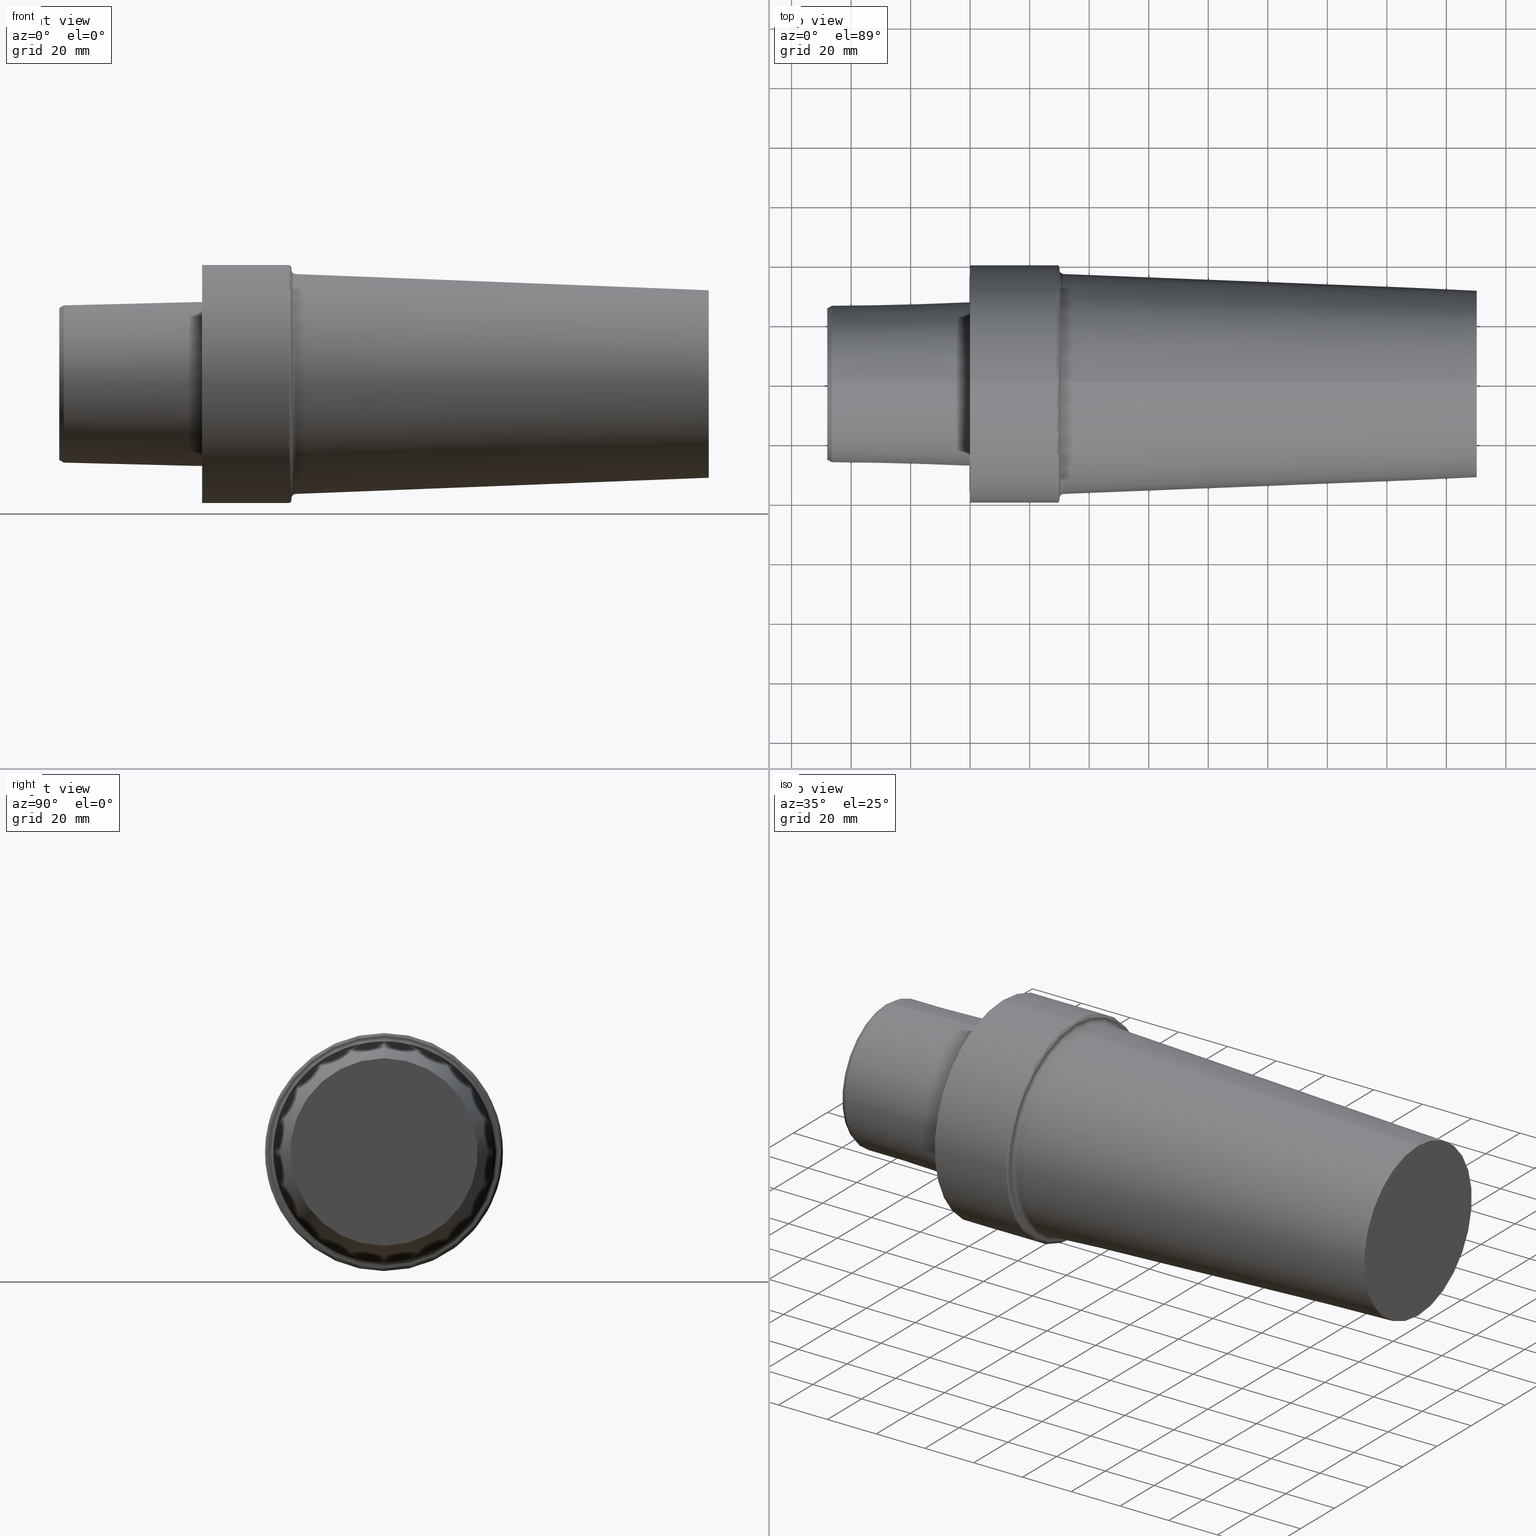
[diagram: canonical four-view strip — front | top / right | iso, engineering-drawing reading convention]
A machine part, canonical four-view strip (front | top / right | iso — engineering-drawing reading convention). The complete STEP part file that produces these views, byte-faithful:
ISO-10303-21;
HEADER;
FILE_DESCRIPTION (( 'STEP AP203' ),
    '1' );
FILE_NAME ('C8-F63-170.stp',
    '2022-03-11T15:36:35',
    ( '' ),
    ( '' ),
    'SwSTEP 2.0',
    'SolidWorks 2021',
    '' );
FILE_SCHEMA (( 'CONFIG_CONTROL_DESIGN' ));
ENDSEC;

DATA;
#1 = ORIENTED_EDGE ( 'NONE', *, *, #265, .T. ) ;
#2 = AXIS2_PLACEMENT_3D ( 'NONE', #484, #34, #441 ) ;
#3 = DIRECTION ( 'NONE',  ( -1.000000000000000000, 0.000000000000000000, 0.000000000000000000 ) ) ;
#4 =( GEOMETRIC_REPRESENTATION_CONTEXT ( 3 ) GLOBAL_UNCERTAINTY_ASSIGNED_CONTEXT ( ( #163 ) ) GLOBAL_UNIT_ASSIGNED_CONTEXT ( ( #38, #197, #276 ) ) REPRESENTATION_CONTEXT ( 'NONE', 'WORKASPACE' ) );
#5 = ORIENTED_EDGE ( 'NONE', *, *, #538, .T. ) ;
#6 = SECURITY_CLASSIFICATION_LEVEL ( 'unclassified' ) ;
#7 = CARTESIAN_POINT ( 'NONE',  ( -47.99999995507708661, 0.000000000000000000, 0.000000000000000000 ) ) ;
#8 = ORIENTED_EDGE ( 'NONE', *, *, #111, .F. ) ;
#9 = ADVANCED_FACE ( 'NONE', ( #29 ), #125, .T. ) ;
#10 = PLANE ( 'NONE',  #364 ) ;
#11 = ORIENTED_EDGE ( 'NONE', *, *, #91, .T. ) ;
#12 = VECTOR ( 'NONE', #133, 1000.000000000000114 ) ;
#13 = FACE_OUTER_BOUND ( 'NONE', #455, .T. ) ;
#14 = ORIENTED_EDGE ( 'NONE', *, *, #150, .T. ) ;
#15 = PRODUCT_RELATED_PRODUCT_CATEGORY ( 'detail', '', ( #285 ) ) ;
#16 = ORIENTED_EDGE ( 'NONE', *, *, #129, .T. ) ;
#17 = EDGE_CURVE ( 'NONE', #124, #22, #287, .T. ) ;
#18 = DIRECTION ( 'NONE',  ( 0.000000000000000000, 1.000000000000000000, 1.224646799147355919E-16 ) ) ;
#19 = ORIENTED_EDGE ( 'NONE', *, *, #457, .T. ) ;
#20 = DIRECTION ( 'NONE',  ( 0.000000000000000000, 0.000000000000000000, 1.000000000000000000 ) ) ;
#21 = AXIS2_PLACEMENT_3D ( 'NONE', #404, #400, #37 ) ;
#22 = VERTEX_POINT ( 'NONE', #74 ) ;
#23 = ORGANIZATION ( 'UNSPECIFIED', 'UNSPECIFIED', '' ) ;
#24 = DIRECTION ( 'NONE',  ( 0.000000000000000000, 0.000000000000000000, 1.000000000000000000 ) ) ;
#25 = ORIENTED_EDGE ( 'NONE', *, *, #223, .F. ) ;
#26 = DIRECTION ( 'NONE',  ( -1.000000000000000000, 0.000000000000000000, 0.000000000000000000 ) ) ;
#27 = ADVANCED_FACE ( 'NONE', ( #363 ), #182, .F. ) ;
#28 = ORIENTED_EDGE ( 'NONE', *, *, #150, .F. ) ;
#29 = FACE_OUTER_BOUND ( 'NONE', #523, .T. ) ;
#30 = CC_DESIGN_PERSON_AND_ORGANIZATION_ASSIGNMENT ( #39, #165, ( #510 ) ) ;
#31 = AXIS2_PLACEMENT_3D ( 'NONE', #527, #532, #149 ) ;
#32 = AXIS2_PLACEMENT_3D ( 'NONE', #411, #454, #499 ) ;
#33 = DIRECTION ( 'NONE',  ( -1.000000000000000000, 0.000000000000000000, 0.000000000000000000 ) ) ;
#34 = DIRECTION ( 'NONE',  ( -1.000000000000000000, 0.000000000000000000, 0.000000000000000000 ) ) ;
#35 = EDGE_CURVE ( 'NONE', #178, #500, #387, .T. ) ;
#36 = CARTESIAN_POINT ( 'NONE',  ( -46.49999994987858543, 0.000000000000000000, -26.41260027772084129 ) ) ;
#37 = DIRECTION ( 'NONE',  ( 0.000000000000000000, 1.000000000000000000, 0.000000000000000000 ) ) ;
#38 =( LENGTH_UNIT ( ) NAMED_UNIT ( * ) SI_UNIT ( .MILLI., .METRE. ) );
#39 = PERSON_AND_ORGANIZATION ( #451, #23 ) ;
#40 = EDGE_CURVE ( 'NONE', #45, #353, #402, .T. ) ;
#41 = LINE ( 'NONE', #327, #321 ) ;
#42 = CARTESIAN_POINT ( 'NONE',  ( 28.99999997311141797, 0.000000000000000000, 0.000000000000000000 ) ) ;
#43 = ORIENTED_EDGE ( 'NONE', *, *, #122, .F. ) ;
#44 = PLANE ( 'NONE',  #253 ) ;
#45 = VERTEX_POINT ( 'NONE', #490 ) ;
#46 = AXIS2_PLACEMENT_3D ( 'NONE', #494, #452, #172 ) ;
#47 = SHAPE_DEFINITION_REPRESENTATION ( #79, #262 ) ;
#48 = DIRECTION ( 'NONE',  ( 0.000000000000000000, 0.000000000000000000, 1.000000000000000000 ) ) ;
#49 = ORIENTED_EDGE ( 'NONE', *, *, #190, .T. ) ;
#50 = APPROVAL ( #151, 'UNSPECIFIED' ) ;
#51 = DIRECTION ( 'NONE',  ( 0.000000000000000000, 0.000000000000000000, 1.000000000000000000 ) ) ;
#52 = ORIENTED_EDGE ( 'NONE', *, *, #369, .F. ) ;
#53 = CARTESIAN_POINT ( 'NONE',  ( 170.1999504090875917, 3.857637413950260996E-15, -31.49999997253168615 ) ) ;
#54 = AXIS2_PLACEMENT_3D ( 'NONE', #366, #408, #161 ) ;
#55 = AXIS2_PLACEMENT_3D ( 'NONE', #388, #470, #95 ) ;
#56 = MANIFOLD_SOLID_BREP ( 'Scale1', #97 ) ;
#57 = CARTESIAN_POINT ( 'NONE',  ( 29.99999997209141611, 38.44230921545053548, 0.000000000000000000 ) ) ;
#58 = ADVANCED_FACE ( 'NONE', ( #444, #152 ), #529, .F. ) ;
#59 = ORIENTED_EDGE ( 'NONE', *, *, #122, .T. ) ;
#60 = CIRCLE ( 'NONE', #519, 27.52650806658465399 ) ;
#61 = DIRECTION ( 'NONE',  ( -1.000000000000000000, 0.000000000000000000, 0.000000000000000000 ) ) ;
#62 = ORIENTED_EDGE ( 'NONE', *, *, #111, .T. ) ;
#63 = CC_DESIGN_DATE_AND_TIME_ASSIGNMENT ( #460, #534, ( #377 ) ) ;
#64 = CARTESIAN_POINT ( 'NONE',  ( 31.49999997056141510, 0.000000000000000000, 38.44230921983423599 ) ) ;
#65 = ORIENTED_EDGE ( 'NONE', *, *, #384, .F. ) ;
#66 = DIRECTION ( 'NONE',  ( 1.000000000000000000, 0.000000000000000000, 0.000000000000000000 ) ) ;
#67 = AXIS2_PLACEMENT_3D ( 'NONE', #255, #381, #212 ) ;
#68 = ORIENTED_EDGE ( 'NONE', *, *, #274, .F. ) ;
#69 = AXIS2_PLACEMENT_3D ( 'NONE', #279, #485, #154 ) ;
#70 = EDGE_CURVE ( 'NONE', #306, #258, #385, .T. ) ;
#71 = DIRECTION ( 'NONE',  ( 0.000000000000000000, 0.000000000000000000, 1.000000000000000000 ) ) ;
#72 = CARTESIAN_POINT ( 'NONE',  ( 2.691416640612785863E-09, 4.897668707065322260E-15, -39.99249996386929951 ) ) ;
#73 = COORDINATED_UNIVERSAL_TIME_OFFSET ( 6, 0, .BEHIND. ) ;
#74 = CARTESIAN_POINT ( 'NONE',  ( -47.99999995507708661, 0.000000000000000000, -25.54657487093501445 ) ) ;
#75 = ADVANCED_FACE ( 'NONE', ( #155 ), #488, .T. ) ;
#76 = VECTOR ( 'NONE', #82, 1000.000000000000114 ) ;
#77 = VECTOR ( 'NONE', #302, 1000.000000000000114 ) ;
#78 = APPROVAL_PERSON_ORGANIZATION ( #251, #443, #160 ) ;
#79 = PRODUCT_DEFINITION_SHAPE ( 'NONE', 'NONE',  #143 ) ;
#80 = FACE_OUTER_BOUND ( 'NONE', #205, .T. ) ;
#81 = EDGE_LOOP ( 'NONE', ( #468, #225 ) ) ;
#82 = DIRECTION ( 'NONE',  ( 0.9996876883616916398, 0.000000000000000000, -0.02499051296106793996 ) ) ;
#83 = DIRECTION ( 'NONE',  ( 0.000000000000000000, 0.000000000000000000, 1.000000000000000000 ) ) ;
#84 = AXIS2_PLACEMENT_3D ( 'NONE', #283, #242, #236 ) ;
#85 = DIRECTION ( 'NONE',  ( 0.000000000000000000, 0.000000000000000000, -1.000000000000000000 ) ) ;
#86 = CARTESIAN_POINT ( 'NONE',  ( -46.49999994987858543, 0.000000000000000000, 0.000000000000000000 ) ) ;
#87 = ORIENTED_EDGE ( 'NONE', *, *, #162, .T. ) ;
#88 = PERSON_AND_ORGANIZATION ( #451, #23 ) ;
#89 = DIRECTION ( 'NONE',  ( 1.000000000000000000, 0.000000000000000000, 0.000000000000000000 ) ) ;
#90 = ORIENTED_EDGE ( 'NONE', *, *, #342, .T. ) ;
#91 = EDGE_CURVE ( 'NONE', #178, #177, #496, .T. ) ;
#92 = APPLICATION_CONTEXT ( 'configuration controlled 3d designs of mechanical parts and assemblies' ) ;
#93 = LOCAL_TIME ( 9, 36, 35.00000000000000000, #417 ) ;
#94 = ORIENTED_EDGE ( 'NONE', *, *, #162, .F. ) ;
#95 = DIRECTION ( 'NONE',  ( 0.000000000000000000, 0.000000000000000000, -1.000000000000000000 ) ) ;
#96 = VERTEX_POINT ( 'NONE', #284 ) ;
#97 = CLOSED_SHELL ( 'NONE', ( #256, #299, #530, #75, #58, #169, #240, #352, #27, #281, #314, #9, #206, #401, #491, #358, #469, #476 ) ) ;
#98 = VECTOR ( 'NONE', #257, 1000.000000000000000 ) ;
#99 = DIRECTION ( 'NONE',  ( -0.9992314028999961240, 0.000000000000000000, 0.03919953390673725641 ) ) ;
#100 = EDGE_LOOP ( 'NONE', ( #503, #371 ) ) ;
#101 = DIRECTION ( 'NONE',  ( 0.000000000000000000, 0.000000000000000000, 1.000000000000000000 ) ) ;
#102 = ORIENTED_EDGE ( 'NONE', *, *, #325, .F. ) ;
#103 = DIRECTION ( 'NONE',  ( 0.000000000000000000, 0.000000000000000000, -1.000000000000000000 ) ) ;
#104 = ORIENTED_EDGE ( 'NONE', *, *, #450, .T. ) ;
#105 = DIRECTION ( 'NONE',  ( 0.000000000000000000, 0.000000000000000000, 1.000000000000000000 ) ) ;
#106 = AXIS2_PLACEMENT_3D ( 'NONE', #328, #335, #83 ) ;
#107 = VERTEX_POINT ( 'NONE', #110 ) ;
#108 = CC_DESIGN_APPROVAL ( #443, ( #510 ) ) ;
#109 = DIRECTION ( 'NONE',  ( -1.000000000000000000, 0.000000000000000000, 0.000000000000000000 ) ) ;
#110 = CARTESIAN_POINT ( 'NONE',  ( 31.44120067062139512, 0.000000000000000000, 36.94346211697936155 ) ) ;
#111 = EDGE_CURVE ( 'NONE', #512, #45, #201, .T. ) ;
#112 = CARTESIAN_POINT ( 'NONE',  ( 29.99999997209141611, 0.000000000000000000, 38.99249996488934045 ) ) ;
#113 = CARTESIAN_POINT ( 'NONE',  ( 170.1999504090875917, 4.190953338524140822E-15, -31.49999997253168615 ) ) ;
#114 = DIRECTION ( 'NONE',  ( -1.000000000000000000, 0.000000000000000000, 0.000000000000000000 ) ) ;
#115 = CARTESIAN_POINT ( 'NONE',  ( -1.940694415329066391, 0.000000000000000000, 0.000000000000000000 ) ) ;
#116 = CIRCLE ( 'NONE', #373, 26.41260027772084129 ) ;
#117 = CONICAL_SURFACE ( 'NONE', #32, 31.49999997253168615, 0.03920957987802033140 ) ;
#118 = PERSON_AND_ORGANIZATION ( #451, #23 ) ;
#119 = DIRECTION ( 'NONE',  ( 0.000000000000000000, 0.000000000000000000, 1.000000000000000000 ) ) ;
#120 = DATE_AND_TIME ( #501, #301 ) ;
#121 = DIRECTION ( 'NONE',  ( 0.000000000000000000, 0.000000000000000000, 1.000000000000000000 ) ) ;
#122 = EDGE_CURVE ( 'NONE', #353, #45, #233, .T. ) ;
#123 = FACE_OUTER_BOUND ( 'NONE', #337, .T. ) ;
#124 = VERTEX_POINT ( 'NONE', #405 ) ;
#125 = CONICAL_SURFACE ( 'NONE', #533, 31.49999997253168615, 0.03920957987802033140 ) ;
#126 = LOCAL_TIME ( 9, 36, 35.00000000000000000, #407 ) ;
#127 = FACE_OUTER_BOUND ( 'NONE', #137, .T. ) ;
#128 = APPROVAL_STATUS ( 'not_yet_approved' ) ;
#129 = EDGE_CURVE ( 'NONE', #177, #222, #394, .T. ) ;
#130 = CARTESIAN_POINT ( 'NONE',  ( 31.49999997056141510, 0.000000000000000000, 0.000000000000000000 ) ) ;
#131 = EDGE_LOOP ( 'NONE', ( #180, #16, #517, #25 ) ) ;
#132 = CARTESIAN_POINT ( 'NONE',  ( 29.99999997209141611, 0.000000000000000000, 0.000000000000000000 ) ) ;
#133 = DIRECTION ( 'NONE',  ( 0.9996876883616916398, 3.060455170682228743E-18, 0.02499051296106793996 ) ) ;
#134 = EDGE_CURVE ( 'NONE', #479, #135, #244, .T. ) ;
#135 = VERTEX_POINT ( 'NONE', #113 ) ;
#136 = DIRECTION ( 'NONE',  ( 0.000000000000000000, 0.000000000000000000, -1.000000000000000000 ) ) ;
#137 = EDGE_LOOP ( 'NONE', ( #422, #312, #174, #65 ) ) ;
#138 = AXIS2_PLACEMENT_3D ( 'NONE', #513, #383, #24 ) ;
#139 = DIRECTION ( 'NONE',  ( 0.000000000000000000, 0.000000000000000000, 1.000000000000000000 ) ) ;
#140 = EDGE_LOOP ( 'NONE', ( #273, #424 ) ) ;
#141 = CC_DESIGN_APPROVAL ( #472, ( #377 ) ) ;
#142 = CARTESIAN_POINT ( 'NONE',  ( -47.99999995507708661, 0.000000000000000000, 0.000000000000000000 ) ) ;
#143 = PRODUCT_DEFINITION ( 'UNKNOWN', '', #510, #406 ) ;
#144 = APPLICATION_CONTEXT ( 'configuration controlled 3d designs of mechanical parts and assemblies' ) ;
#145 = VERTEX_POINT ( 'NONE', #316 ) ;
#146 = ORIENTED_EDGE ( 'NONE', *, *, #440, .F. ) ;
#147 = CARTESIAN_POINT ( 'NONE',  ( 2.691416640612785863E-09, 0.000000000000000000, 0.000000000000000000 ) ) ;
#148 = VECTOR ( 'NONE', #99, 1000.000000000000114 ) ;
#149 = DIRECTION ( 'NONE',  ( 0.000000000000000000, 0.000000000000000000, 1.000000000000000000 ) ) ;
#150 = EDGE_CURVE ( 'NONE', #222, #177, #473, .T. ) ;
#151 = APPROVAL_STATUS ( 'not_yet_approved' ) ;
#152 = FACE_OUTER_BOUND ( 'NONE', #185, .T. ) ;
#153 = CC_DESIGN_PERSON_AND_ORGANIZATION_ASSIGNMENT ( #414, #492, ( #377 ) ) ;
#154 = DIRECTION ( 'NONE',  ( 0.000000000000000000, 0.000000000000000000, 1.000000000000000000 ) ) ;
#155 = FACE_OUTER_BOUND ( 'NONE', #290, .T. ) ;
#156 = VERTEX_POINT ( 'NONE', #72 ) ;
#157 = PERSON_AND_ORGANIZATION_ROLE ( 'design_owner' ) ;
#158 = CIRCLE ( 'NONE', #506, 38.44230921545053548 ) ;
#159 = APPROVAL_PERSON_ORGANIZATION ( #326, #472, #412 ) ;
#160 = APPROVAL_ROLE ( '' ) ;
#161 = DIRECTION ( 'NONE',  ( 0.000000000000000000, 0.000000000000000000, 1.000000000000000000 ) ) ;
#162 = EDGE_CURVE ( 'NONE', #512, #145, #116, .T. ) ;
#163 = UNCERTAINTY_MEASURE_WITH_UNIT (LENGTH_MEASURE( 1.000000000000000082E-05 ), #38, 'distance_accuracy_value', 'NONE');
#164 = DIRECTION ( 'NONE',  ( 0.000000000000000000, 1.000000000000000000, 0.000000000000000000 ) ) ;
#165 = PERSON_AND_ORGANIZATION_ROLE ( 'design_supplier' ) ;
#166 = DIRECTION ( 'NONE',  ( -1.000000000000000000, 0.000000000000000000, 0.000000000000000000 ) ) ;
#167 = ORIENTED_EDGE ( 'NONE', *, *, #495, .T. ) ;
#168 = AXIS2_PLACEMENT_3D ( 'NONE', #390, #18, #478 ) ;
#169 = ADVANCED_FACE ( 'NONE', ( #379 ), #539, .T. ) ;
#170 = CARTESIAN_POINT ( 'NONE',  ( 2.691416640612785863E-09, 0.000000000000000000, 39.99249996386929951 ) ) ;
#171 = VERTEX_POINT ( 'NONE', #170 ) ;
#172 = DIRECTION ( 'NONE',  ( 0.000000000000000000, 0.000000000000000000, 1.000000000000000000 ) ) ;
#173 = CARTESIAN_POINT ( 'NONE',  ( -47.99999995507708661, 3.371024999544667893E-15, -27.52650806658465399 ) ) ;
#174 = ORIENTED_EDGE ( 'NONE', *, *, #482, .T. ) ;
#175 = CIRCLE ( 'NONE', #67, 26.41260027772084129 ) ;
#176 = CARTESIAN_POINT ( 'NONE',  ( 28.99999997311141797, 0.000000000000000000, 0.000000000000000000 ) ) ;
#177 = VERTEX_POINT ( 'NONE', #368 ) ;
#178 = VERTEX_POINT ( 'NONE', #507 ) ;
#179 = CARTESIAN_POINT ( 'NONE',  ( -47.99999995507708661, 0.000000000000000000, 0.000000000000000000 ) ) ;
#180 = ORIENTED_EDGE ( 'NONE', *, *, #286, .F. ) ;
#181 = EDGE_CURVE ( 'NONE', #145, #353, #331, .T. ) ;
#182 = TOROIDAL_SURFACE ( 'NONE', #54, 38.44230921983423599, 1.499999998469999873 ) ;
#183 = AXIS2_PLACEMENT_3D ( 'NONE', #475, #267, #103 ) ;
#184 = CARTESIAN_POINT ( 'NONE',  ( -46.49999994987858543, 3.234610638726928974E-15, 26.41260027772084129 ) ) ;
#185 = EDGE_LOOP ( 'NONE', ( #477, #462 ) ) ;
#186 = DIRECTION ( 'NONE',  ( -1.000000000000000000, 0.000000000000000000, 0.000000000000000000 ) ) ;
#187 = ORIENTED_EDGE ( 'NONE', *, *, #509, .F. ) ;
#188 = DIRECTION ( 'NONE',  ( 0.000000000000000000, 0.000000000000000000, 1.000000000000000000 ) ) ;
#189 = DIRECTION ( 'NONE',  ( -1.000000000000000000, 0.000000000000000000, 0.000000000000000000 ) ) ;
#190 = EDGE_CURVE ( 'NONE', #107, #229, #445, .T. ) ;
#191 = CYLINDRICAL_SURFACE ( 'NONE', #69, 39.99249996386929951 ) ;
#192 = AXIS2_PLACEMENT_3D ( 'NONE', #57, #522, #20 ) ;
#193 = ORIENTED_EDGE ( 'NONE', *, *, #190, .F. ) ;
#194 = CIRCLE ( 'NONE', #466, 36.94346211697936155 ) ;
#195 = DATE_AND_TIME ( #241, #367 ) ;
#196 = CARTESIAN_POINT ( 'NONE',  ( -46.49999994987858543, 0.000000000000000000, 0.000000000000000000 ) ) ;
#197 =( NAMED_UNIT ( * ) PLANE_ANGLE_UNIT ( ) SI_UNIT ( $, .RADIAN. ) );
#198 = CARTESIAN_POINT ( 'NONE',  ( -47.99999995507708661, 0.000000000000000000, 0.000000000000000000 ) ) ;
#199 = EDGE_CURVE ( 'NONE', #145, #512, #175, .T. ) ;
#200 = CARTESIAN_POINT ( 'NONE',  ( 170.1999504090875917, 0.000000000000000000, 0.000000000000000000 ) ) ;
#201 = LINE ( 'NONE', #324, #76 ) ;
#202 = AXIS2_PLACEMENT_3D ( 'NONE', #7, #3, #48 ) ;
#203 = CARTESIAN_POINT ( 'NONE',  ( 31.44120067062139512, 0.000000000000000000, 0.000000000000000000 ) ) ;
#204 = DIRECTION ( 'NONE',  ( 0.000000000000000000, 0.000000000000000000, 1.000000000000000000 ) ) ;
#205 = EDGE_LOOP ( 'NONE', ( #427, #94, #62, #386 ) ) ;
#206 = ADVANCED_FACE ( 'NONE', ( #127 ), #209, .F. ) ;
#207 = CARTESIAN_POINT ( 'NONE',  ( 170.1999504090875917, 0.000000000000000000, 0.000000000000000000 ) ) ;
#208 = ORIENTED_EDGE ( 'NONE', *, *, #91, .F. ) ;
#209 = TOROIDAL_SURFACE ( 'NONE', #516, 38.44230921983423599, 1.499999998469999873 ) ;
#210 = CIRCLE ( 'NONE', #518, 25.54657487093501445 ) ;
#211 = CALENDAR_DATE ( 2022, 11, 3 ) ;
#212 = DIRECTION ( 'NONE',  ( 0.000000000000000000, 0.000000000000000000, 1.000000000000000000 ) ) ;
#213 = APPROVAL_STATUS ( 'not_yet_approved' ) ;
#214 = DIRECTION ( 'NONE',  ( -1.000000000000000000, 0.000000000000000000, 0.000000000000000000 ) ) ;
#215 = FACE_OUTER_BOUND ( 'NONE', #266, .T. ) ;
#216 = ORIENTED_EDGE ( 'NONE', *, *, #129, .F. ) ;
#217 = CIRCLE ( 'NONE', #428, 1.499999998470002982 ) ;
#218 = CONICAL_SURFACE ( 'NONE', #237, 26.41260027772084129, 0.5235987755982992597 ) ;
#219 = LINE ( 'NONE', #345, #446 ) ;
#220 = ORIENTED_EDGE ( 'NONE', *, *, #181, .T. ) ;
#221 = CARTESIAN_POINT ( 'NONE',  ( 29.99999997209141611, 0.000000000000000000, 0.000000000000000000 ) ) ;
#222 = VERTEX_POINT ( 'NONE', #465 ) ;
#223 = EDGE_CURVE ( 'NONE', #156, #171, #278, .T. ) ;
#224 = DIRECTION ( 'NONE',  ( 0.8660254037844387076, 0.000000000000000000, -0.4999999999999998890 ) ) ;
#225 = ORIENTED_EDGE ( 'NONE', *, *, #538, .F. ) ;
#226 = CC_DESIGN_DATE_AND_TIME_ASSIGNMENT ( #243, #295, ( #143 ) ) ;
#227 = AXIS2_PLACEMENT_3D ( 'NONE', #115, #449, #121 ) ;
#228 = CYLINDRICAL_SURFACE ( 'NONE', #375, 27.52650806658465399 ) ;
#229 = VERTEX_POINT ( 'NONE', #296 ) ;
#230 = PERSON_AND_ORGANIZATION ( #451, #23 ) ;
#231 = CARTESIAN_POINT ( 'NONE',  ( 29.99999997209141611, 0.000000000000000000, 0.000000000000000000 ) ) ;
#232 = DIRECTION ( 'NONE',  ( -1.000000000000000000, 0.000000000000000000, 0.000000000000000000 ) ) ;
#233 = CIRCLE ( 'NONE', #84, 27.52650806658465399 ) ;
#234 = DIRECTION ( 'NONE',  ( 1.000000000000000000, 0.000000000000000000, 0.000000000000000000 ) ) ;
#235 = VECTOR ( 'NONE', #224, 1000.000000000000000 ) ;
#236 = DIRECTION ( 'NONE',  ( 0.000000000000000000, 0.000000000000000000, 1.000000000000000000 ) ) ;
#237 = AXIS2_PLACEMENT_3D ( 'NONE', #435, #66, #365 ) ;
#238 = CARTESIAN_POINT ( 'NONE',  ( -1.940694415329066391, 0.000000000000000000, 0.000000000000000000 ) ) ;
#239 = DIRECTION ( 'NONE',  ( 0.000000000000000000, 0.000000000000000000, 1.000000000000000000 ) ) ;
#240 = ADVANCED_FACE ( 'NONE', ( #504 ), #347, .T. ) ;
#241 = CALENDAR_DATE ( 2022, 11, 3 ) ;
#242 = DIRECTION ( 'NONE',  ( -1.000000000000000000, 0.000000000000000000, 0.000000000000000000 ) ) ;
#243 = DATE_AND_TIME ( #211, #126 ) ;
#244 = CIRCLE ( 'NONE', #31, 31.49999997253168615 ) ;
#245 = COORDINATED_UNIVERSAL_TIME_OFFSET ( 6, 0, .BEHIND. ) ;
#246 = EDGE_CURVE ( 'NONE', #96, #380, #158, .T. ) ;
#247 = CARTESIAN_POINT ( 'NONE',  ( 2.691416640612785863E-09, 0.000000000000000000, 27.52650806658465399 ) ) ;
#248 = EDGE_LOOP ( 'NONE', ( #436, #346, #350, #87 ) ) ;
#249 = CALENDAR_DATE ( 2022, 11, 3 ) ;
#250 = FACE_OUTER_BOUND ( 'NONE', #81, .T. ) ;
#251 = PERSON_AND_ORGANIZATION ( #451, #23 ) ;
#252 = CARTESIAN_POINT ( 'NONE',  ( -1.940694415329066391, 3.371024999544667893E-15, 27.52650806658465399 ) ) ;
#253 = AXIS2_PLACEMENT_3D ( 'NONE', #207, #61, #423 ) ;
#254 = APPROVAL_PERSON_ORGANIZATION ( #118, #50, #442 ) ;
#255 = CARTESIAN_POINT ( 'NONE',  ( -46.49999994987858543, 0.000000000000000000, 0.000000000000000000 ) ) ;
#256 = ADVANCED_FACE ( 'NONE', ( #537 ), #10, .F. ) ;
#257 = DIRECTION ( 'NONE',  ( 0.8660254037844387076, 6.123233995736768501E-17, 0.4999999999999998890 ) ) ;
#258 = VERTEX_POINT ( 'NONE', #293 ) ;
#259 = LINE ( 'NONE', #425, #235 ) ;
#260 = ORIENTED_EDGE ( 'NONE', *, *, #134, .T. ) ;
#261 = AXIS2_PLACEMENT_3D ( 'NONE', #275, #536, #119 ) ;
#262 = ADVANCED_BREP_SHAPE_REPRESENTATION ( 'C8-F63-170', ( #56, #429 ), #4 ) ;
#263 = CIRCLE ( 'NONE', #55, 0.9999999989799973621 ) ;
#264 = DIRECTION ( 'NONE',  ( 0.000000000000000000, -1.000000000000000000, 0.000000000000000000 ) ) ;
#265 = EDGE_CURVE ( 'NONE', #258, #45, #370, .T. ) ;
#266 = EDGE_LOOP ( 'NONE', ( #389, #1, #43, #313 ) ) ;
#267 = DIRECTION ( 'NONE',  ( 1.000000000000000000, 0.000000000000000000, 0.000000000000000000 ) ) ;
#268 = EDGE_LOOP ( 'NONE', ( #393, #220, #59, #8 ) ) ;
#269 = FACE_OUTER_BOUND ( 'NONE', #304, .T. ) ;
#270 = ORIENTED_EDGE ( 'NONE', *, *, #482, .F. ) ;
#271 = AXIS2_PLACEMENT_3D ( 'NONE', #203, #502, #334 ) ;
#272 = CIRCLE ( 'NONE', #395, 31.49999997253168615 ) ;
#273 = ORIENTED_EDGE ( 'NONE', *, *, #70, .F. ) ;
#274 = EDGE_CURVE ( 'NONE', #500, #178, #338, .T. ) ;
#275 = CARTESIAN_POINT ( 'NONE',  ( -47.99999995507708661, 0.000000000000000000, 0.000000000000000000 ) ) ;
#276 =( NAMED_UNIT ( * ) SI_UNIT ( $, .STERADIAN. ) SOLID_ANGLE_UNIT ( ) );
#277 = ORIENTED_EDGE ( 'NONE', *, *, #416, .F. ) ;
#278 = CIRCLE ( 'NONE', #46, 39.99249996386929951 ) ;
#279 = CARTESIAN_POINT ( 'NONE',  ( -47.99999995507708661, 0.000000000000000000, 0.000000000000000000 ) ) ;
#280 = DIRECTION ( 'NONE',  ( 0.000000000000000000, 0.000000000000000000, 1.000000000000000000 ) ) ;
#281 = ADVANCED_FACE ( 'NONE', ( #123 ), #117, .T. ) ;
#282 = APPROVAL_DATE_TIME ( #195, #50 ) ;
#283 = CARTESIAN_POINT ( 'NONE',  ( -1.940694415329066391, 0.000000000000000000, 0.000000000000000000 ) ) ;
#284 = CARTESIAN_POINT ( 'NONE',  ( 29.99999997209141611, 4.707825093521852864E-15, -38.44230921764238218 ) ) ;
#285 = PRODUCT ( 'C8-F63-170', 'C8-F63-170', '', ( #526 ) ) ;
#286 = EDGE_CURVE ( 'NONE', #177, #156, #41, .T. ) ;
#287 = CIRCLE ( 'NONE', #261, 25.54657487093501445 ) ;
#288 = DIRECTION ( 'NONE',  ( 1.000000000000000000, 0.000000000000000000, 0.000000000000000000 ) ) ;
#289 = AXIS2_PLACEMENT_3D ( 'NONE', #176, #303, #305 ) ;
#290 = EDGE_LOOP ( 'NONE', ( #514, #167, #104, #382 ) ) ;
#291 = CC_DESIGN_APPROVAL ( #50, ( #143 ) ) ;
#292 = CC_DESIGN_PERSON_AND_ORGANIZATION_ASSIGNMENT ( #88, #463, ( #510 ) ) ;
#293 = CARTESIAN_POINT ( 'NONE',  ( 2.691416640612785863E-09, 3.371024999544667893E-15, -27.52650806658465399 ) ) ;
#294 = ORIENTED_EDGE ( 'NONE', *, *, #17, .F. ) ;
#295 = DATE_TIME_ROLE ( 'creation_date' ) ;
#296 = CARTESIAN_POINT ( 'NONE',  ( 31.44120067062139512, 4.524269263098024593E-15, -36.94346211697936155 ) ) ;
#297 = DIRECTION ( 'NONE',  ( -1.000000000000000000, 0.000000000000000000, 0.000000000000000000 ) ) ;
#298 = ORIENTED_EDGE ( 'NONE', *, *, #274, .T. ) ;
#299 = ADVANCED_FACE ( 'NONE', ( #415 ), #308, .T. ) ;
#300 = AXIS2_PLACEMENT_3D ( 'NONE', #42, #297, #204 ) ;
#301 = LOCAL_TIME ( 9, 36, 35.00000000000000000, #456 ) ;
#302 = DIRECTION ( 'NONE',  ( -0.9992314028999961240, 4.800558372695389665E-18, -0.03919953390673725641 ) ) ;
#303 = DIRECTION ( 'NONE',  ( -1.000000000000000000, 0.000000000000000000, 0.000000000000000000 ) ) ;
#304 = EDGE_LOOP ( 'NONE', ( #294, #431, #397, #146 ) ) ;
#305 = DIRECTION ( 'NONE',  ( 0.000000000000000000, 0.000000000000000000, 1.000000000000000000 ) ) ;
#306 = VERTEX_POINT ( 'NONE', #247 ) ;
#307 = AXIS2_PLACEMENT_3D ( 'NONE', #357, #493, #71 ) ;
#308 = CONICAL_SURFACE ( 'NONE', #329, 26.41260027772084129, 0.5235987755982992597 ) ;
#309 = FACE_OUTER_BOUND ( 'NONE', #268, .T. ) ;
#310 = ORIENTED_EDGE ( 'NONE', *, *, #409, .T. ) ;
#311 = LINE ( 'NONE', #53, #77 ) ;
#312 = ORIENTED_EDGE ( 'NONE', *, *, #434, .T. ) ;
#313 = ORIENTED_EDGE ( 'NONE', *, *, #450, .F. ) ;
#314 = ADVANCED_FACE ( 'NONE', ( #250 ), #44, .F. ) ;
#315 = CARTESIAN_POINT ( 'NONE',  ( 31.44120067062139512, 0.000000000000000000, 0.000000000000000000 ) ) ;
#316 = CARTESIAN_POINT ( 'NONE',  ( -46.49999994987858543, 3.302817819135798828E-15, 26.41260027772084129 ) ) ;
#317 = DIRECTION ( 'NONE',  ( -1.000000000000000000, 0.000000000000000000, 0.000000000000000000 ) ) ;
#318 = DIRECTION ( 'NONE',  ( 1.000000000000000000, 0.000000000000000000, 0.000000000000000000 ) ) ;
#319 = DIRECTION ( 'NONE',  ( 0.000000000000000000, 0.000000000000000000, 1.000000000000000000 ) ) ;
#320 = AXIS2_PLACEMENT_3D ( 'NONE', #524, #322, #398 ) ;
#321 = VECTOR ( 'NONE', #458, 1000.000000000000000 ) ;
#322 = DIRECTION ( 'NONE',  ( 0.000000000000000000, 1.000000000000000000, 1.224646799147353947E-16 ) ) ;
#323 = DATE_AND_TIME ( #249, #339 ) ;
#324 = CARTESIAN_POINT ( 'NONE',  ( -1.940694415329066391, 0.000000000000000000, -27.52650806658465399 ) ) ;
#325 = EDGE_CURVE ( 'NONE', #135, #229, #311, .T. ) ;
#326 = PERSON_AND_ORGANIZATION ( #451, #23 ) ;
#327 = CARTESIAN_POINT ( 'NONE',  ( -47.99999995507708661, 4.897668707065322260E-15, -39.99249996386929951 ) ) ;
#328 = CARTESIAN_POINT ( 'NONE',  ( 29.99999997209141611, 0.000000000000000000, 0.000000000000000000 ) ) ;
#329 = AXIS2_PLACEMENT_3D ( 'NONE', #86, #288, #85 ) ;
#330 = VECTOR ( 'NONE', #109, 1000.000000000000000 ) ;
#331 = LINE ( 'NONE', #252, #12 ) ;
#332 = APPROVAL_DATE_TIME ( #120, #472 ) ;
#333 = CC_DESIGN_PERSON_AND_ORGANIZATION_ASSIGNMENT ( #230, #157, ( #285 ) ) ;
#334 = DIRECTION ( 'NONE',  ( 0.000000000000000000, 0.000000000000000000, 1.000000000000000000 ) ) ;
#335 = DIRECTION ( 'NONE',  ( -1.000000000000000000, 0.000000000000000000, 0.000000000000000000 ) ) ;
#336 = CC_DESIGN_PERSON_AND_ORGANIZATION_ASSIGNMENT ( #359, #528, ( #143 ) ) ;
#337 = EDGE_LOOP ( 'NONE', ( #102, #5, #90, #270 ) ) ;
#338 = CIRCLE ( 'NONE', #106, 38.99249996488934045 ) ;
#339 = LOCAL_TIME ( 9, 36, 35.00000000000000000, #245 ) ;
#340 = LINE ( 'NONE', #392, #148 ) ;
#341 = ORIENTED_EDGE ( 'NONE', *, *, #434, .F. ) ;
#342 = EDGE_CURVE ( 'NONE', #479, #107, #340, .T. ) ;
#343 = FACE_BOUND ( 'NONE', #100, .T. ) ;
#344 = ORIENTED_EDGE ( 'NONE', *, *, #342, .F. ) ;
#345 = CARTESIAN_POINT ( 'NONE',  ( -47.99999995507708661, 0.000000000000000000, 27.52650806658465399 ) ) ;
#346 = ORIENTED_EDGE ( 'NONE', *, *, #457, .F. ) ;
#347 = TOROIDAL_SURFACE ( 'NONE', #300, 38.99249996488934045, 0.9999999989799999156 ) ;
#348 = CONICAL_SURFACE ( 'NONE', #183, 27.52650806658465399, 0.02499311489546479637 ) ;
#349 = CARTESIAN_POINT ( 'NONE',  ( 29.99999997209141611, 0.000000000000000000, 38.44230921764238218 ) ) ;
#350 = ORIENTED_EDGE ( 'NONE', *, *, #440, .T. ) ;
#351 = FACE_OUTER_BOUND ( 'NONE', #474, .T. ) ;
#352 = ADVANCED_FACE ( 'NONE', ( #343, #351 ), #520, .F. ) ;
#353 = VERTEX_POINT ( 'NONE', #511 ) ;
#354 = DIRECTION ( 'NONE',  ( -1.000000000000000000, 0.000000000000000000, 0.000000000000000000 ) ) ;
#355 = CIRCLE ( 'NONE', #168, 1.499999998470002982 ) ;
#356 = APPLICATION_PROTOCOL_DEFINITION ( 'international standard', 'config_control_design', 1994, #92 ) ;
#357 = CARTESIAN_POINT ( 'NONE',  ( 28.99999997311141797, 0.000000000000000000, 0.000000000000000000 ) ) ;
#358 = ADVANCED_FACE ( 'NONE', ( #215 ), #228, .T. ) ;
#359 = PERSON_AND_ORGANIZATION ( #451, #23 ) ;
#360 = CARTESIAN_POINT ( 'NONE',  ( 2.691416640612785863E-09, 0.000000000000000000, 0.000000000000000000 ) ) ;
#361 = ORIENTED_EDGE ( 'NONE', *, *, #35, .T. ) ;
#362 = CARTESIAN_POINT ( 'NONE',  ( 170.1999504090875917, 0.000000000000000000, 31.49999997253168615 ) ) ;
#363 = FACE_OUTER_BOUND ( 'NONE', #471, .T. ) ;
#364 = AXIS2_PLACEMENT_3D ( 'NONE', #413, #89, #164 ) ;
#365 = DIRECTION ( 'NONE',  ( 0.000000000000000000, 0.000000000000000000, -1.000000000000000000 ) ) ;
#366 = CARTESIAN_POINT ( 'NONE',  ( 31.49999997056141510, 0.000000000000000000, 0.000000000000000000 ) ) ;
#367 = LOCAL_TIME ( 9, 36, 35.00000000000000000, #73 ) ;
#368 = CARTESIAN_POINT ( 'NONE',  ( 28.99999997311141797, 4.897668707065322260E-15, -39.99249996386929951 ) ) ;
#369 = EDGE_CURVE ( 'NONE', #171, #156, #453, .T. ) ;
#370 = LINE ( 'NONE', #173, #437 ) ;
#371 = ORIENTED_EDGE ( 'NONE', *, *, #246, .T. ) ;
#372 = CALENDAR_DATE ( 2022, 11, 3 ) ;
#373 = AXIS2_PLACEMENT_3D ( 'NONE', #196, #166, #374 ) ;
#374 = DIRECTION ( 'NONE',  ( 0.000000000000000000, 0.000000000000000000, 1.000000000000000000 ) ) ;
#375 = AXIS2_PLACEMENT_3D ( 'NONE', #179, #396, #101 ) ;
#376 = EDGE_LOOP ( 'NONE', ( #14, #508, #52, #187 ) ) ;
#377 = SECURITY_CLASSIFICATION ( '', '', #6 ) ;
#378 = EDGE_CURVE ( 'NONE', #124, #145, #467, .T. ) ;
#379 = FACE_OUTER_BOUND ( 'NONE', #131, .T. ) ;
#380 = VERTEX_POINT ( 'NONE', #349 ) ;
#381 = DIRECTION ( 'NONE',  ( -1.000000000000000000, 0.000000000000000000, 0.000000000000000000 ) ) ;
#382 = ORIENTED_EDGE ( 'NONE', *, *, #40, .F. ) ;
#383 = DIRECTION ( 'NONE',  ( -1.000000000000000000, 0.000000000000000000, 0.000000000000000000 ) ) ;
#384 = EDGE_CURVE ( 'NONE', #380, #107, #217, .T. ) ;
#385 = CIRCLE ( 'NONE', #410, 27.52650806658465399 ) ;
#386 = ORIENTED_EDGE ( 'NONE', *, *, #40, .T. ) ;
#387 = CIRCLE ( 'NONE', #426, 38.99249996488934045 ) ;
#388 = CARTESIAN_POINT ( 'NONE',  ( 28.99999997311141797, 0.000000000000000000, 38.99249996488934045 ) ) ;
#389 = ORIENTED_EDGE ( 'NONE', *, *, #70, .T. ) ;
#390 = CARTESIAN_POINT ( 'NONE',  ( 31.49999997056141510, 4.707825093790277776E-15, -38.44230921983423599 ) ) ;
#391 = ORIENTED_EDGE ( 'NONE', *, *, #409, .F. ) ;
#392 = CARTESIAN_POINT ( 'NONE',  ( 170.1999504090875917, 0.000000000000000000, 31.49999997253168615 ) ) ;
#393 = ORIENTED_EDGE ( 'NONE', *, *, #199, .F. ) ;
#394 = CIRCLE ( 'NONE', #307, 39.99249996386929951 ) ;
#395 = AXIS2_PLACEMENT_3D ( 'NONE', #200, #33, #188 ) ;
#396 = DIRECTION ( 'NONE',  ( -1.000000000000000000, 0.000000000000000000, 0.000000000000000000 ) ) ;
#397 = ORIENTED_EDGE ( 'NONE', *, *, #199, .T. ) ;
#398 = DIRECTION ( 'NONE',  ( 0.000000000000000000, -1.224646799147358384E-16, 1.000000000000000000 ) ) ;
#399 = DIRECTION ( 'NONE',  ( 0.000000000000000000, 0.000000000000000000, 1.000000000000000000 ) ) ;
#400 = DIRECTION ( 'NONE',  ( 1.000000000000000000, 0.000000000000000000, 0.000000000000000000 ) ) ;
#401 = ADVANCED_FACE ( 'NONE', ( #13 ), #419, .T. ) ;
#402 = CIRCLE ( 'NONE', #227, 27.52650806658465399 ) ;
#403 = AXIS2_PLACEMENT_3D ( 'NONE', #221, #432, #430 ) ;
#404 = CARTESIAN_POINT ( 'NONE',  ( 2.691419645645579073E-09, 39.99249996386929951, 0.000000000000000000 ) ) ;
#405 = CARTESIAN_POINT ( 'NONE',  ( -47.99999995507708661, 3.181581876606904120E-15, 25.54657487093501445 ) ) ;
#406 = DESIGN_CONTEXT ( 'detailed design', #144, 'design' ) ;
#407 = COORDINATED_UNIVERSAL_TIME_OFFSET ( 6, 0, .BEHIND. ) ;
#408 = DIRECTION ( 'NONE',  ( -1.000000000000000000, 0.000000000000000000, 0.000000000000000000 ) ) ;
#409 = EDGE_CURVE ( 'NONE', #500, #222, #263, .T. ) ;
#410 = AXIS2_PLACEMENT_3D ( 'NONE', #360, #189, #280 ) ;
#411 = CARTESIAN_POINT ( 'NONE',  ( 170.1999504090875917, 0.000000000000000000, 0.000000000000000000 ) ) ;
#412 = APPROVAL_ROLE ( '' ) ;
#413 = CARTESIAN_POINT ( 'NONE',  ( -47.99999995507708661, 25.54657487093501445, 0.000000000000000000 ) ) ;
#414 = PERSON_AND_ORGANIZATION ( #451, #23 ) ;
#415 = FACE_OUTER_BOUND ( 'NONE', #248, .T. ) ;
#416 = EDGE_CURVE ( 'NONE', #380, #96, #497, .T. ) ;
#417 = COORDINATED_UNIVERSAL_TIME_OFFSET ( 6, 0, .BEHIND. ) ;
#418 = DIRECTION ( 'NONE',  ( -1.000000000000000000, 0.000000000000000000, 0.000000000000000000 ) ) ;
#419 = TOROIDAL_SURFACE ( 'NONE', #289, 38.99249996488934045, 0.9999999989799999156 ) ;
#420 = AXIS2_PLACEMENT_3D ( 'NONE', #238, #234, #447 ) ;
#421 = DIRECTION ( 'NONE',  ( 0.000000000000000000, 0.000000000000000000, 1.000000000000000000 ) ) ;
#422 = ORIENTED_EDGE ( 'NONE', *, *, #246, .F. ) ;
#423 = DIRECTION ( 'NONE',  ( 0.000000000000000000, 0.000000000000000000, 1.000000000000000000 ) ) ;
#424 = ORIENTED_EDGE ( 'NONE', *, *, #495, .F. ) ;
#425 = CARTESIAN_POINT ( 'NONE',  ( -46.49999994987858543, 0.000000000000000000, -26.41260027772084129 ) ) ;
#426 = AXIS2_PLACEMENT_3D ( 'NONE', #231, #317, #319 ) ;
#427 = ORIENTED_EDGE ( 'NONE', *, *, #181, .F. ) ;
#428 = AXIS2_PLACEMENT_3D ( 'NONE', #64, #264, #136 ) ;
#429 = AXIS2_PLACEMENT_3D ( 'NONE', #531, #399, #318 ) ;
#430 = DIRECTION ( 'NONE',  ( 0.000000000000000000, 0.000000000000000000, 1.000000000000000000 ) ) ;
#431 = ORIENTED_EDGE ( 'NONE', *, *, #378, .T. ) ;
#432 = DIRECTION ( 'NONE',  ( -1.000000000000000000, 0.000000000000000000, 0.000000000000000000 ) ) ;
#433 = EDGE_LOOP ( 'NONE', ( #19, #459 ) ) ;
#434 = EDGE_CURVE ( 'NONE', #96, #229, #355, .T. ) ;
#435 = CARTESIAN_POINT ( 'NONE',  ( -46.49999994987858543, 0.000000000000000000, 0.000000000000000000 ) ) ;
#436 = ORIENTED_EDGE ( 'NONE', *, *, #378, .F. ) ;
#437 = VECTOR ( 'NONE', #418, 1000.000000000000000 ) ;
#438 = DIRECTION ( 'NONE',  ( 0.000000000000000000, 0.000000000000000000, 1.000000000000000000 ) ) ;
#439 = EDGE_LOOP ( 'NONE', ( #208, #361, #310, #216 ) ) ;
#440 = EDGE_CURVE ( 'NONE', #22, #512, #259, .T. ) ;
#441 = DIRECTION ( 'NONE',  ( 0.000000000000000000, 0.000000000000000000, 1.000000000000000000 ) ) ;
#442 = APPROVAL_ROLE ( '' ) ;
#443 = APPROVAL ( #213, 'UNSPECIFIED' ) ;
#444 = FACE_BOUND ( 'NONE', #140, .T. ) ;
#445 = CIRCLE ( 'NONE', #271, 36.94346211697936155 ) ;
#446 = VECTOR ( 'NONE', #186, 1000.000000000000000 ) ;
#447 = DIRECTION ( 'NONE',  ( 0.000000000000000000, 0.000000000000000000, -1.000000000000000000 ) ) ;
#448 = DIRECTION ( 'NONE',  ( 0.000000000000000000, 0.000000000000000000, 1.000000000000000000 ) ) ;
#449 = DIRECTION ( 'NONE',  ( -1.000000000000000000, 0.000000000000000000, 0.000000000000000000 ) ) ;
#450 = EDGE_CURVE ( 'NONE', #306, #353, #219, .T. ) ;
#451 = PERSON ( 'UNSPECIFIED', 'UNSPECIFIED', 'UNSPECIFIED', ('UNSPECIFIED'), ('UNSPECIFIED'), ('UNSPECIFIED') ) ;
#452 = DIRECTION ( 'NONE',  ( -1.000000000000000000, 0.000000000000000000, 0.000000000000000000 ) ) ;
#453 = CIRCLE ( 'NONE', #138, 39.99249996386929951 ) ;
#454 = DIRECTION ( 'NONE',  ( -1.000000000000000000, 0.000000000000000000, 0.000000000000000000 ) ) ;
#455 = EDGE_LOOP ( 'NONE', ( #298, #11, #28, #391 ) ) ;
#456 = COORDINATED_UNIVERSAL_TIME_OFFSET ( 6, 0, .BEHIND. ) ;
#457 = EDGE_CURVE ( 'NONE', #22, #124, #210, .T. ) ;
#458 = DIRECTION ( 'NONE',  ( -1.000000000000000000, 0.000000000000000000, 0.000000000000000000 ) ) ;
#459 = ORIENTED_EDGE ( 'NONE', *, *, #17, .T. ) ;
#460 = DATE_AND_TIME ( #372, #93 ) ;
#461 = DIRECTION ( 'NONE',  ( -1.000000000000000000, 0.000000000000000000, 0.000000000000000000 ) ) ;
#462 = ORIENTED_EDGE ( 'NONE', *, *, #223, .T. ) ;
#463 = PERSON_AND_ORGANIZATION_ROLE ( 'creator' ) ;
#464 = AXIS2_PLACEMENT_3D ( 'NONE', #198, #354, #448 ) ;
#465 = CARTESIAN_POINT ( 'NONE',  ( 28.99999997311141797, 0.000000000000000000, 39.99249996386929951 ) ) ;
#466 = AXIS2_PLACEMENT_3D ( 'NONE', #315, #114, #438 ) ;
#467 = LINE ( 'NONE', #184, #98 ) ;
#468 = ORIENTED_EDGE ( 'NONE', *, *, #134, .F. ) ;
#469 = ADVANCED_FACE ( 'NONE', ( #309 ), #348, .T. ) ;
#470 = DIRECTION ( 'NONE',  ( 0.000000000000000000, -1.000000000000000000, 0.000000000000000000 ) ) ;
#471 = EDGE_LOOP ( 'NONE', ( #341, #277, #521, #49 ) ) ;
#472 = APPROVAL ( #128, 'UNSPECIFIED' ) ;
#473 = CIRCLE ( 'NONE', #2, 39.99249996386929951 ) ;
#474 = EDGE_LOOP ( 'NONE', ( #68, #481 ) ) ;
#475 = CARTESIAN_POINT ( 'NONE',  ( -1.940694415329066391, 0.000000000000000000, 0.000000000000000000 ) ) ;
#476 = ADVANCED_FACE ( 'NONE', ( #269 ), #218, .T. ) ;
#477 = ORIENTED_EDGE ( 'NONE', *, *, #369, .T. ) ;
#478 = DIRECTION ( 'NONE',  ( 0.000000000000000000, -1.224646799147355426E-16, 1.000000000000000000 ) ) ;
#479 = VERTEX_POINT ( 'NONE', #362 ) ;
#480 = CARTESIAN_POINT ( 'NONE',  ( -47.99999995507708661, 0.000000000000000000, 39.99249996386929951 ) ) ;
#481 = ORIENTED_EDGE ( 'NONE', *, *, #35, .F. ) ;
#482 = EDGE_CURVE ( 'NONE', #229, #107, #194, .T. ) ;
#483 = LINE ( 'NONE', #480, #330 ) ;
#484 = CARTESIAN_POINT ( 'NONE',  ( 28.99999997311141797, 0.000000000000000000, 0.000000000000000000 ) ) ;
#485 = DIRECTION ( 'NONE',  ( -1.000000000000000000, 0.000000000000000000, 0.000000000000000000 ) ) ;
#486 = CARTESIAN_POINT ( 'NONE',  ( 170.1999504090875917, 0.000000000000000000, 0.000000000000000000 ) ) ;
#487 = FACE_OUTER_BOUND ( 'NONE', #376, .T. ) ;
#488 = CYLINDRICAL_SURFACE ( 'NONE', #464, 27.52650806658465399 ) ;
#489 = APPLICATION_PROTOCOL_DEFINITION ( 'international standard', 'config_control_design', 1994, #144 ) ;
#490 = CARTESIAN_POINT ( 'NONE',  ( -1.940694415329066391, 3.371024999544667893E-15, -27.52650806658465399 ) ) ;
#491 = ADVANCED_FACE ( 'NONE', ( #487 ), #191, .T. ) ;
#492 = PERSON_AND_ORGANIZATION_ROLE ( 'classification_officer' ) ;
#493 = DIRECTION ( 'NONE',  ( -1.000000000000000000, 0.000000000000000000, 0.000000000000000000 ) ) ;
#494 = CARTESIAN_POINT ( 'NONE',  ( 2.691416640612785863E-09, 0.000000000000000000, 0.000000000000000000 ) ) ;
#495 = EDGE_CURVE ( 'NONE', #258, #306, #60, .T. ) ;
#496 = CIRCLE ( 'NONE', #320, 0.9999999989799973621 ) ;
#497 = CIRCLE ( 'NONE', #403, 38.44230921545053548 ) ;
#498 = APPROVAL_DATE_TIME ( #323, #443 ) ;
#499 = DIRECTION ( 'NONE',  ( 0.000000000000000000, 0.000000000000000000, 1.000000000000000000 ) ) ;
#500 = VERTEX_POINT ( 'NONE', #112 ) ;
#501 = CALENDAR_DATE ( 2022, 11, 3 ) ;
#502 = DIRECTION ( 'NONE',  ( -1.000000000000000000, 0.000000000000000000, 0.000000000000000000 ) ) ;
#503 = ORIENTED_EDGE ( 'NONE', *, *, #416, .T. ) ;
#504 = FACE_OUTER_BOUND ( 'NONE', #439, .T. ) ;
#505 = ORIENTED_EDGE ( 'NONE', *, *, #325, .T. ) ;
#506 = AXIS2_PLACEMENT_3D ( 'NONE', #132, #461, #51 ) ;
#507 = CARTESIAN_POINT ( 'NONE',  ( 29.99999997209141611, 4.836436367170416693E-15, -38.99249996488934045 ) ) ;
#508 = ORIENTED_EDGE ( 'NONE', *, *, #286, .T. ) ;
#509 = EDGE_CURVE ( 'NONE', #222, #171, #483, .T. ) ;
#510 = PRODUCT_DEFINITION_FORMATION_WITH_SPECIFIED_SOURCE ( 'ANY', '', #285, .NOT_KNOWN. ) ;
#511 = CARTESIAN_POINT ( 'NONE',  ( -1.940694415329066391, 0.000000000000000000, 27.52650806658465399 ) ) ;
#512 = VERTEX_POINT ( 'NONE', #36 ) ;
#513 = CARTESIAN_POINT ( 'NONE',  ( 2.691416640612785863E-09, 0.000000000000000000, 0.000000000000000000 ) ) ;
#514 = ORIENTED_EDGE ( 'NONE', *, *, #265, .F. ) ;
#515 = DIRECTION ( 'NONE',  ( -1.000000000000000000, 0.000000000000000000, 0.000000000000000000 ) ) ;
#516 = AXIS2_PLACEMENT_3D ( 'NONE', #130, #214, #421 ) ;
#517 = ORIENTED_EDGE ( 'NONE', *, *, #509, .T. ) ;
#518 = AXIS2_PLACEMENT_3D ( 'NONE', #142, #515, #139 ) ;
#519 = AXIS2_PLACEMENT_3D ( 'NONE', #147, #26, #105 ) ;
#520 = PLANE ( 'NONE',  #192 ) ;
#521 = ORIENTED_EDGE ( 'NONE', *, *, #384, .T. ) ;
#522 = DIRECTION ( 'NONE',  ( -1.000000000000000000, 0.000000000000000000, 0.000000000000000000 ) ) ;
#523 = EDGE_LOOP ( 'NONE', ( #260, #505, #193, #344 ) ) ;
#524 = CARTESIAN_POINT ( 'NONE',  ( 28.99999997311141797, 4.775204027275495348E-15, -38.99249996488934045 ) ) ;
#525 = CONICAL_SURFACE ( 'NONE', #420, 27.52650806658465399, 0.02499311489546479637 ) ;
#526 = MECHANICAL_CONTEXT ( 'NONE', #92, 'mechanical' ) ;
#527 = CARTESIAN_POINT ( 'NONE',  ( 170.1999504090875917, 0.000000000000000000, 0.000000000000000000 ) ) ;
#528 = PERSON_AND_ORGANIZATION_ROLE ( 'creator' ) ;
#529 = PLANE ( 'NONE',  #21 ) ;
#530 = ADVANCED_FACE ( 'NONE', ( #80 ), #525, .T. ) ;
#531 = CARTESIAN_POINT ( 'NONE',  ( 0.000000000000000000, 0.000000000000000000, 0.000000000000000000 ) ) ;
#532 = DIRECTION ( 'NONE',  ( -1.000000000000000000, 0.000000000000000000, 0.000000000000000000 ) ) ;
#533 = AXIS2_PLACEMENT_3D ( 'NONE', #486, #232, #239 ) ;
#534 = DATE_TIME_ROLE ( 'classification_date' ) ;
#535 = CC_DESIGN_SECURITY_CLASSIFICATION ( #377, ( #510 ) ) ;
#536 = DIRECTION ( 'NONE',  ( -1.000000000000000000, 0.000000000000000000, 0.000000000000000000 ) ) ;
#537 = FACE_OUTER_BOUND ( 'NONE', #433, .T. ) ;
#538 = EDGE_CURVE ( 'NONE', #135, #479, #272, .T. ) ;
#539 = CYLINDRICAL_SURFACE ( 'NONE', #202, 39.99249996386929951 ) ;
ENDSEC;
END-ISO-10303-21;
